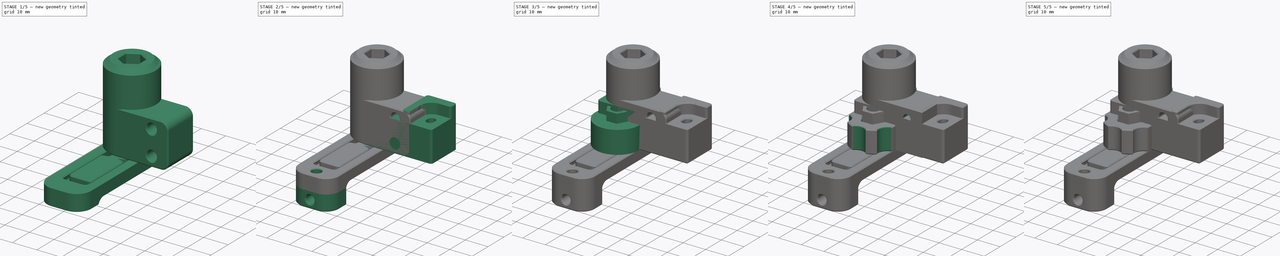
[diagram: build sequence overview — one tinted view per stage of 5, left to right]
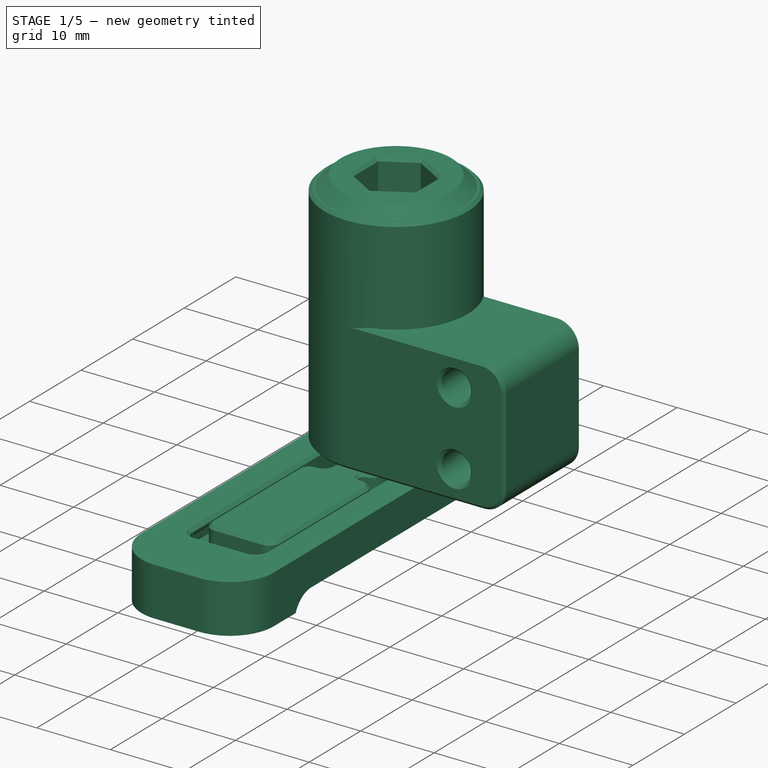
[diagram: stage 1 of 5 — iso view after this stage's code; geometry added in this stage tinted green]
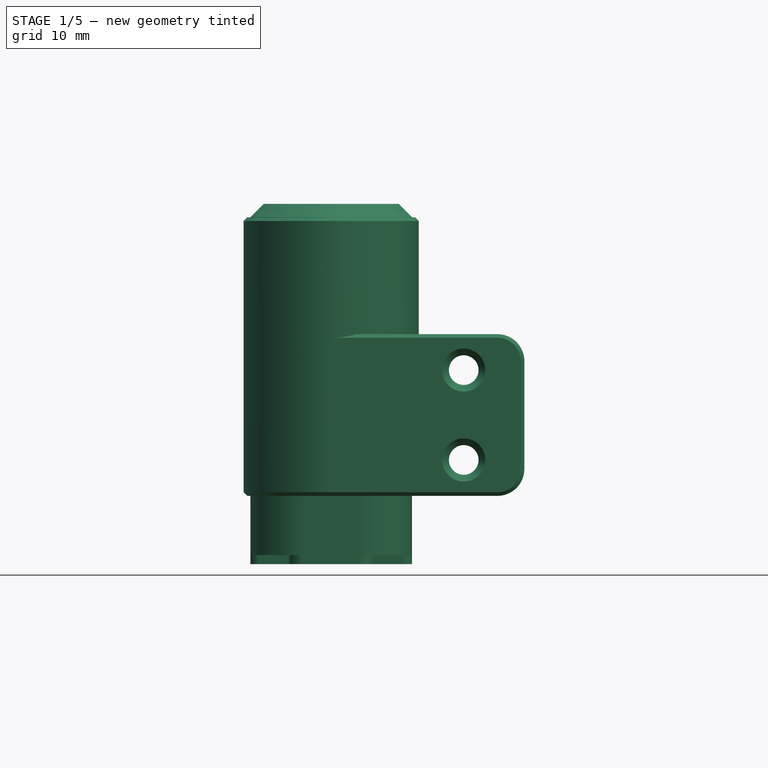
[diagram: stage 1 of 5 — front view after this stage's code; geometry added in this stage tinted green]
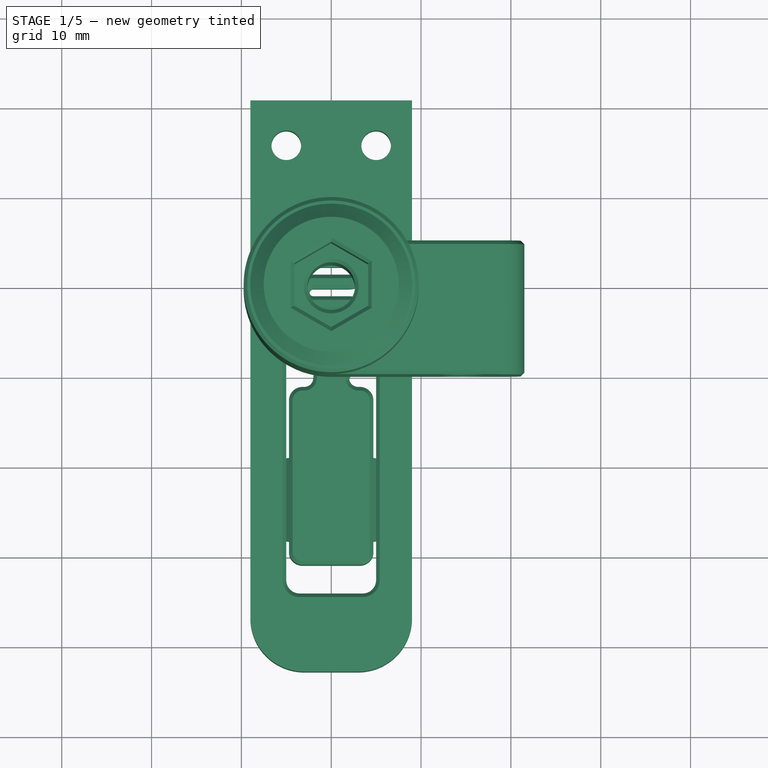
[diagram: stage 1 of 5 — top view after this stage's code; geometry added in this stage tinted green]
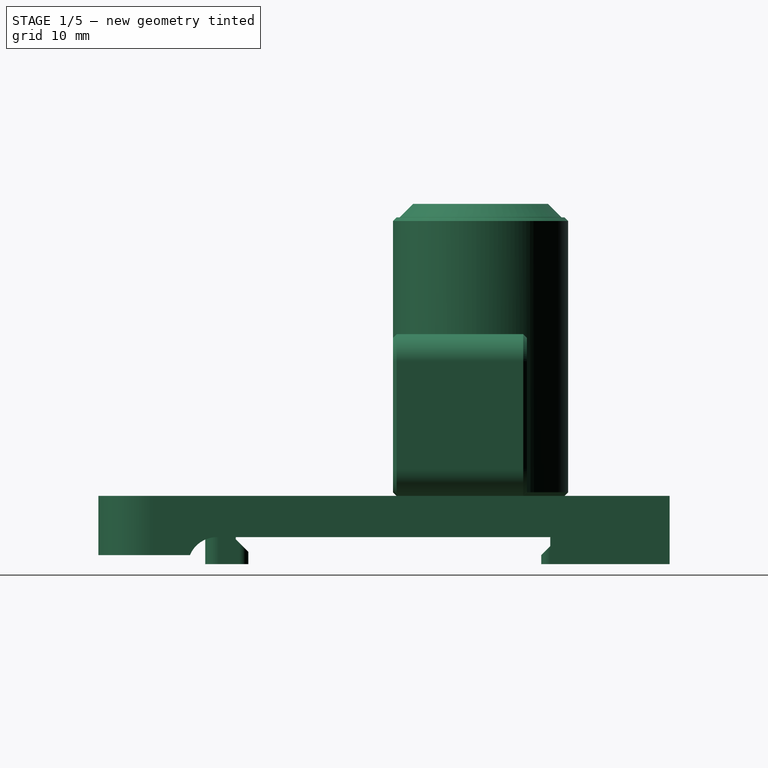
[diagram: stage 1 of 5 — right view after this stage's code; geometry added in this stage tinted green]
FCSTD DOCUMENT  (FreeCAD 0.19R24291 (Git))
Label: long-lcd-navi-mounter
License: All rights reserved
LicenseURL: http://en.wikipedia.org/wiki/All_rights_reserved
objects: Sketcher::SketchObject×28, PartDesign::Pocket×17, PartDesign::Pad×13, PartDesign::Chamfer×11, PartDesign::Fillet×8, PartDesign::Body×8, Part::Feature×2, PartDesign::FeatureBase×2, PartDesign::PolarPattern×1
note: 139 computed .brp shape members not serialized (recipe doc carries the construction recipe); baked Part::Feature solids carry a one-line shape summary decoded from their .brp

FEATURE [PartDesign::Body] Body004004003005  label="din-mounter-top"
  Group = -> [Sketch041,Pad002007,Sketch042,Pocket024,Sketch043,Pocket025,Sketch044,Pocket026,Fillet005010,Fillet005011,Chamfer007008]
  Origin = -> Origin009
  Placement = pos=(1.8e-14,-23,15) rot=(1,0,0;3.14159rad)
  Tip = -> Chamfer007008
FEATURE [Part::Feature] Fillet005012
FEATURE [PartDesign::FeatureBase] BaseFeature001
  BaseFeature = -> Fillet005012
FEATURE [Sketcher::SketchObject] Sketch045
  FullyConstrained = true
  MapMode = 5
  Placement = pos=(0,0,0) rot=(1,0,0;3.14159rad)
  Support = -> [BaseFeature001]
  sketch-geometry (2):
    g0: Circle CenterX=0 CenterY=-9.75 CenterZ=0 NormalX=0 NormalY=0 NormalZ=1 AngleXU=0 Radius=9.75
    g1: Circle CenterX=0 CenterY=-9.75 CenterZ=0 NormalX=0 NormalY=0 NormalZ=1 AngleXU=0 Radius=2.65
  constraints (5):
    c: PointOnObject(g0,g-2)
    c: Radius(g0) = 9.75
    c: DistanceY(g0,g-1) = 9.75
    c: Coincident(g1,g0)
    c: Radius(g1) = 2.65
FEATURE [PartDesign::Pad] Pad002008
  BaseFeature = -> BaseFeature001
  Direction = (1,1,1)
  Length = 31
  Length2 = 100
  Profile = -> Sketch045
  Reversed = true
  Type = 0
FEATURE [Sketcher::SketchObject] Sketch046
  FullyConstrained = false
  MapMode = 5
  Placement = pos=(0,0,31) rot=(0,0,1;0rad)
  Support = -> [Pad002008]
  sketch-geometry (2):
    g0: Circle CenterX=0 CenterY=9.75261 CenterZ=0 NormalX=0 NormalY=0 NormalZ=1 AngleXU=0 Radius=9
    g1: Circle CenterX=0 CenterY=9.75261 CenterZ=0 NormalX=0 NormalY=0 NormalZ=1 AngleXU=0 Radius=2.65
  constraints (4):
    c: PointOnObject(g0,g-2)
    c: Coincident(g1,g0)
    c: Radius(g1) = 2.65
    c: Radius(g0) = 9
FEATURE [PartDesign::Pad] Pad002009
  BaseFeature = -> Pad002008
  Direction = (1,1,1)
  Length = 1.5
  Length2 = 100
  Profile = -> Sketch046
  Type = 0
FEATURE [PartDesign::Chamfer] Chamfer007009
  Angle = 45
  Base = -> Pad002009 [Edge40]
  BaseFeature = -> Pad002009
  ChamferType = 0
  FlipDirection = false
  Size = 1.49
  Size2 = 1
  SupportTransform = false
FEATURE [Sketcher::SketchObject] Sketch047
  FullyConstrained = true
  MapMode = 5
  Placement = pos=(0,0,32.5) rot=(0,0,1;0rad)
  Support = -> [Chamfer007009]
  sketch-geometry (7):
    g0: LineSegment StartX=0 StartY=14.5 StartZ=0 EndX=-4.11362 EndY=12.125 EndZ=0
    g1: LineSegment StartX=-4.11362 StartY=12.125 StartZ=0 EndX=-4.11362 EndY=7.375 EndZ=0
    g2: LineSegment StartX=-4.11362 StartY=7.375 StartZ=0 EndX=-1.33e-14 EndY=5 EndZ=0
    g3: LineSegment StartX=-1.33e-14 StartY=5 StartZ=0 EndX=4.11362 EndY=7.375 EndZ=0
    g4: LineSegment StartX=4.11362 StartY=7.375 StartZ=0 EndX=4.11362 EndY=12.125 EndZ=0
    g5: LineSegment StartX=4.11362 StartY=12.125 StartZ=0 EndX=0 EndY=14.5 EndZ=0
    g6: Circle CenterX=0 CenterY=9.75 CenterZ=0 NormalX=0 NormalY=0 NormalZ=1 AngleXU=0 Radius=4.75
  constraints (17):
    c: Coincident(g0,g1)
    c: Coincident(g1,g2)
    c: Coincident(g2,g3)
    c: Coincident(g3,g4)
    c: Coincident(g4,g5)
    c: Coincident(g5,g0)
    c: Equal(g0, g1-g5) x5
    c: PointOnObject(g0,g6)
    c: PointOnObject(g1,g6)
    c: PointOnObject(g2,g6)
    c: PointOnObject(g3,g6)
    c: PointOnObject(g4,g6)
    c: PointOnObject(g5,g6)
    c: PointOnObject(g6,g-2)
    c: PointOnObject(g5,g-2)
    c: Radius(g6) = 4.75
    c: DistanceY(g-1,g6) = 9.75
FEATURE [PartDesign::Pocket] Pocket027
  BaseFeature = -> Chamfer007009
  Length = 11
  Length2 = 100
  Profile = -> Sketch047
  Refine = true
  Type = 0
FEATURE [PartDesign::FeatureBase] BaseFeature
  BaseFeature = -> Defeatured
FEATURE [Sketcher::SketchObject] Sketch052
  ExternalGeometry = -> [BaseFeature]
  FullyConstrained = true
  MapMode = 5
  Placement = pos=(-7.66e-14,2.1e-14,-7.59685) rot=(1,0,0;3.14159rad)
  Support = -> [BaseFeature]
  sketch-geometry (4):
    g0: LineSegment StartX=-9.00279 StartY=-20 StartZ=0 EndX=8.99721 EndY=-20 EndZ=0
    g1: LineSegment StartX=8.99721 StartY=-20 StartZ=0 EndX=8.99721 EndY=-30.797 EndZ=0
    g2: LineSegment StartX=8.99721 StartY=-30.797 StartZ=0 EndX=-9.00279 EndY=-30.797 EndZ=0
    g3: LineSegment StartX=-9.00279 StartY=-30.797 StartZ=0 EndX=-9.00279 EndY=-20 EndZ=0
  constraints (12):
    c: Coincident(g0,g1)
    c: Coincident(g1,g2)
    c: Coincident(g2,g3)
    c: Coincident(g3,g0)
    c: Horizontal(g0)
    c: Horizontal(g2)
    c: Vertical(g1)
    c: Vertical(g3)
    c: PointOnObject(g0,g-3)
    c: Vertical(g0,g-4)
    c: DistanceY(g2,g-5) = 0
    c: DistanceY(g0,g-1) = 20
FEATURE [PartDesign::Pad] Pad002012
  BaseFeature = -> BaseFeature
  Direction = (1,1,1)
  Length = 10
  Length2 = 100
  Profile = -> Sketch052
  Refine = true
  Type = 3
  UpToFace = -> BaseFeature [Face3]
FEATURE [PartDesign::Body] Body004004003007  label="top-connector"
  Group = -> [Sketch051,Pad002011,Fillet005014,Sketch056,Pad002015,Fillet005015,Fillet005016,Chamfer007016]
  Origin = -> Origin011
  Tip = -> Chamfer007016
FEATURE [Sketcher::SketchObject] Sketch057
  ExternalGeometry = -> [Pad002012]
  FullyConstrained = true
  MapMode = 5
  Placement = pos=(-7.67e-14,2.29e-14,-7.59685) rot=(1,0,0;3.14159rad)
  Support = -> [Pad002012]
  sketch-geometry (2):
    g0: Circle CenterX=-5.00279 CenterY=-25.797 CenterZ=0 NormalX=0 NormalY=0 NormalZ=1 AngleXU=0 Radius=1.65
    g1: Circle CenterX=4.99721 CenterY=-25.797 CenterZ=0 NormalX=0 NormalY=0 NormalZ=1 AngleXU=0 Radius=1.65
  constraints (6):
    c: Horizontal(g0,g1)
    c: Equal(g1,g0)
    c: DistanceX(g-3,g0) = 4
    c: DistanceX(g1,g-3) = 4
    c: DistanceY(g-3,g0) = 5
    c: Radius(g0) = 1.65
FEATURE [PartDesign::Pocket] Pocket029
  BaseFeature = -> Pad002012
  Length = 5
  Length2 = 100
  Profile = -> Sketch057
  Type = 1
FEATURE [PartDesign::Body] Body001  label="din-mounter"
  BaseFeature = -> Defeatured
  Group = -> [BaseFeature,Sketch052,Pad002012,Sketch057,Pocket029,Pad002016,Pad002017,Sketch058,Pocket030,Sketch059,Pocket031,Fillet005017,Chamfer007017]
  Origin = -> Origin001
  Tip = -> Chamfer007017
FEATURE [PartDesign::Chamfer] Chamfer007018
  Angle = 45
  Base = -> Pocket027 [Edge5,Edge19,Edge8,Edge15,Edge16,Edge17,Edge20,Edge31,Edge9,Edge10,Edge12,Edge6,Edge2,Edge13,Edge14,Edge32,Edge44,Edge45,Edge40,Edge41,Edge42,Edge43,Edge58,Edge34]
  BaseFeature = -> Pocket027
  ChamferType = 0
  FlipDirection = false
  Size = 0.4
  Size2 = 1
  SupportTransform = false
FEATURE [PartDesign::Chamfer] Chamfer007019
  Angle = 45
  Base = -> Chamfer007018 [Edge66,Edge68]
  BaseFeature = -> Chamfer007018
  ChamferType = 0
  FlipDirection = false
  Size = 0.34
  Size2 = 1
  SupportTransform = false
FEATURE [PartDesign::Body] Body004004003006  label="join-r2"
  BaseFeature = -> Fillet005012
  Group = -> [BaseFeature001,Sketch045,Pad002008,Sketch046,Pad002009,Chamfer007009,Sketch047,Pocket027,Chamfer007018,Chamfer007019]
  Origin = -> Origin010
  Tip = -> Chamfer007019
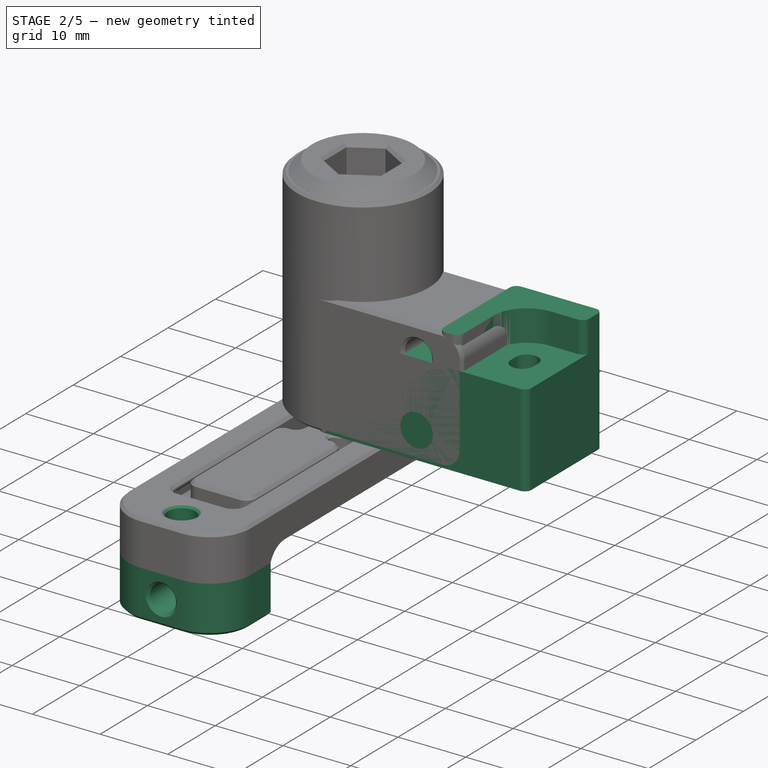
[diagram: stage 2 of 5 — iso view after this stage's code; geometry added in this stage tinted green]
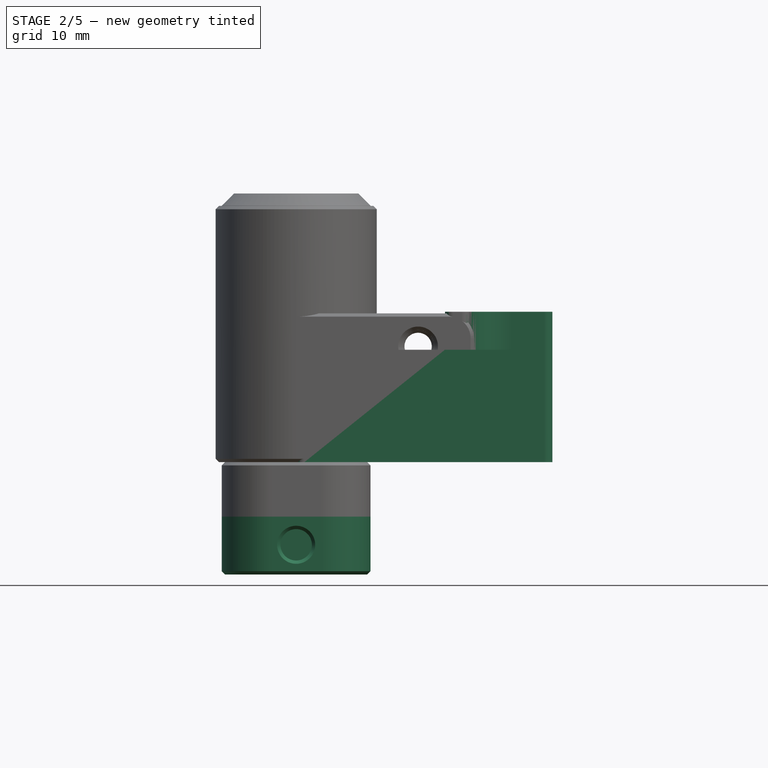
[diagram: stage 2 of 5 — front view after this stage's code; geometry added in this stage tinted green]
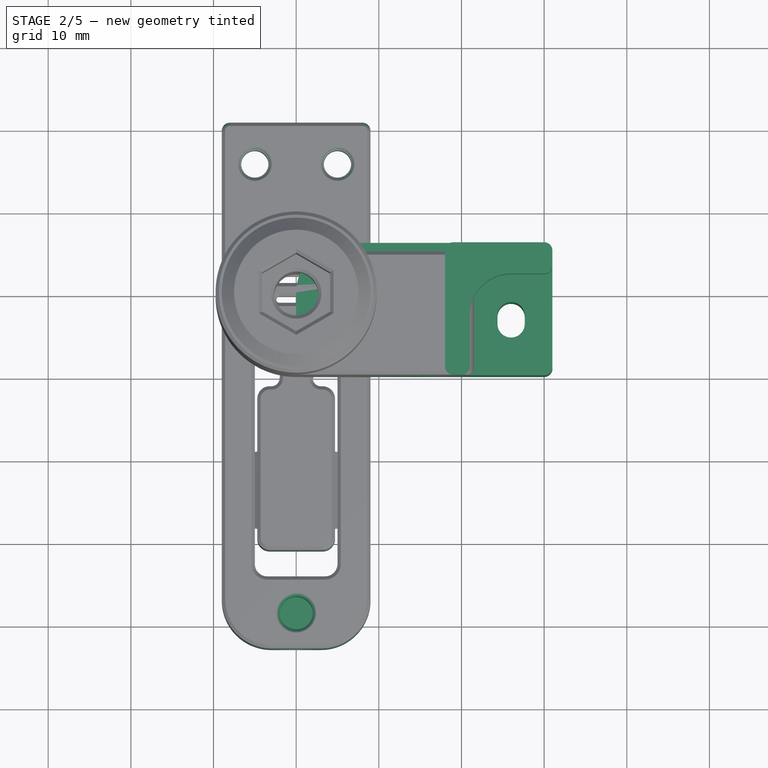
[diagram: stage 2 of 5 — top view after this stage's code; geometry added in this stage tinted green]
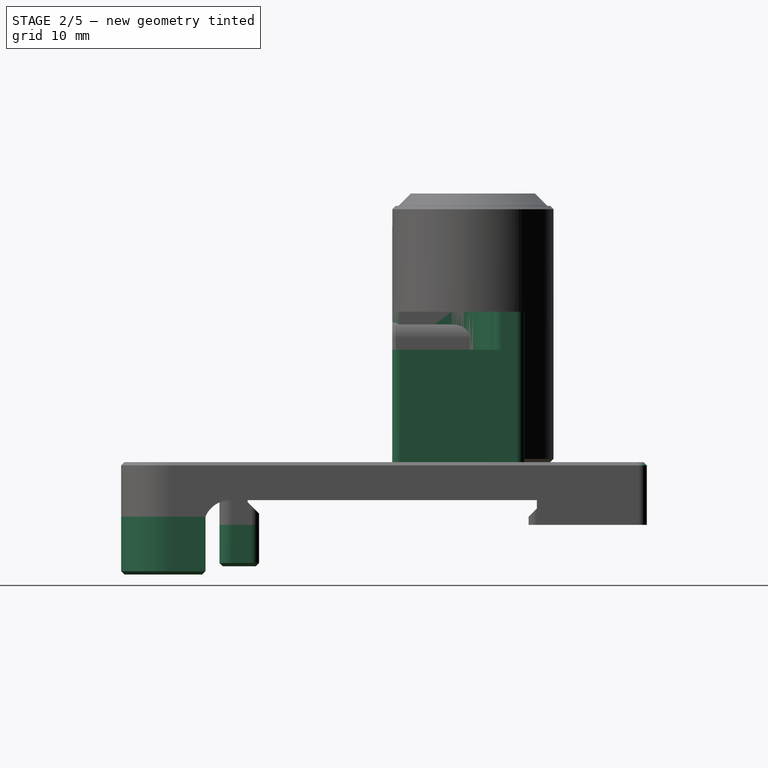
[diagram: stage 2 of 5 — right view after this stage's code; geometry added in this stage tinted green]
FEATURE [Sketcher::SketchObject] Sketch051
  FullyConstrained = true
  MapMode = 5
  Support = -> [XY_Plane011]
  sketch-geometry (9):
    g0: LineSegment StartX=0 StartY=0 StartZ=0 EndX=31 EndY=0 EndZ=0
    g1: LineSegment StartX=31 StartY=0 StartZ=0 EndX=31 EndY=16 EndZ=0
    g2: LineSegment StartX=31 StartY=16 StartZ=0 EndX=0 EndY=16 EndZ=0
    g3: LineSegment StartX=0 StartY=16 StartZ=0 EndX=0 EndY=0 EndZ=0
    g4: Circle CenterX=9 CenterY=11.7 CenterZ=0 NormalX=0 NormalY=0 NormalZ=1 AngleXU=0 Radius=1.65
    g5: ArcOfCircle CenterX=26 CenterY=6.2 CenterZ=0 NormalX=0 NormalY=0 NormalZ=1 AngleXU=0 Radius=1.65 StartAngle=3.14159 EndAngle=6.28319
    g6: ArcOfCircle CenterX=26 CenterY=7.2 CenterZ=0 NormalX=0 NormalY=0 NormalZ=1 AngleXU=0 Radius=1.65 StartAngle=0 EndAngle=3.14159
    g7: LineSegment StartX=27.65 StartY=6.2 StartZ=0 EndX=27.65 EndY=7.2 EndZ=0
    g8: LineSegment StartX=24.35 StartY=6.2 StartZ=0 EndX=24.35 EndY=7.2 EndZ=0
  constraints (24):
    c: Coincident(g0,g1)
    c: Coincident(g1,g2)
    c: Coincident(g2,g3)
    c: Coincident(g3,g0)
    c: Horizontal(g0)
    c: Horizontal(g2)
    c: Vertical(g1)
    c: Vertical(g3)
    c: Coincident(g0,g-1)
    c: DistanceX(g2,g2) = 31
    c: DistanceY(g1,g1) = 16
    c: DistanceY(g4,g2) = 4.3
    c: DistanceX(g2,g4) = 9
    c: Radius(g4) = 1.65
    c: Tangent(g5,g8) = 1.5708
    c: Tangent(g5,g7) = -1.5708
    c: Tangent(g7,g6) = -1.5708
    c: Tangent(g8,g6) = 1.5708
    c: Vertical(g7)
    c: Equal(g5,g6)
    c: DistanceX(g6,g1) = 5
    c: DistanceY(g6,g4) = 4.5
    c: DistanceY(g5,g6) = 1
    c: Radius(g6) = 1.65
FEATURE [PartDesign::Pad] Pad002011
  Direction = (1,1,1)
  Length = 13.6
  Length2 = 100
  Profile = -> Sketch051
  Type = 0
FEATURE [PartDesign::Fillet] Fillet005014
  Base = -> Pad002011 [Edge8]
  BaseFeature = -> Pad002011
  Radius = 6
  SupportTransform = false
FEATURE [Sketcher::SketchObject] Sketch056
  ExternalGeometry = -> [Fillet005014]
  FullyConstrained = true
  MapMode = 5
  Placement = pos=(0,0,13.6) rot=(0,0,1;0rad)
  Support = -> [Fillet005014]
  sketch-geometry (6):
    g0: LineSegment StartX=18 StartY=0 StartZ=0 EndX=18 EndY=16 EndZ=0
    g1: LineSegment StartX=18 StartY=16 StartZ=0 EndX=31 EndY=16 EndZ=0
    g2: LineSegment StartX=31 StartY=16 StartZ=0 EndX=31 EndY=12.2 EndZ=0
    g3: LineSegment StartX=31 StartY=12.2 StartZ=0 EndX=21 EndY=12.2 EndZ=0
    g4: LineSegment StartX=21 StartY=12.2 StartZ=0 EndX=21 EndY=0 EndZ=0
    g5: LineSegment StartX=21 StartY=0 StartZ=0 EndX=18 EndY=0 EndZ=0
  constraints (17):
    c: PointOnObject(g0,g-1)
    c: PointOnObject(g0,g-3)
    c: Vertical(g0)
    c: Coincident(g0,g1)
    c: Coincident(g1,g-4)
    c: Coincident(g1,g2)
    c: PointOnObject(g2,g-4)
    c: Coincident(g2,g3)
    c: Horizontal(g3)
    c: Coincident(g3,g4)
    c: PointOnObject(g4,g-1)
    c: Vertical(g4)
    c: Coincident(g4,g5)
    c: Coincident(g5,g0)
    c: DistanceX(g-5,g0) = 9
    c: DistanceX(g3,g-6) = 5
    c: DistanceY(g-6,g3) = 5
FEATURE [PartDesign::Pad] Pad002015
  BaseFeature = -> Fillet005014
  Direction = (1,1,1)
  Length = 4.6
  Length2 = 100
  Profile = -> Sketch056
  Refine = true
  Type = 0
FEATURE [PartDesign::Fillet] Fillet005015
  Base = -> Pad002015 [Edge41]
  BaseFeature = -> Pad002015
  Radius = 5
  SupportTransform = false
FEATURE [PartDesign::Fillet] Fillet005016
  Base = -> Fillet005015 [Edge15,Edge19,Edge11,Edge17,Edge24,Edge21,Edge42]
  BaseFeature = -> Fillet005015
  Radius = 1
  SupportTransform = false
FEATURE [PartDesign::Pad] Pad002016
  BaseFeature = -> Pocket029
  Direction = (1,1,1)
  Length = 7
  Length2 = 100
  Profile = -> Pocket029 [Face13]
  Type = 0
FEATURE [PartDesign::Pad] Pad002017
  BaseFeature = -> Pad002016
  Direction = (1,1,1)
  Length = 5
  Length2 = 100
  Profile = -> Pad002016 [Face139]
  Type = 0
FEATURE [Sketcher::SketchObject] Sketch058
  FullyConstrained = true
  MapMode = 5
  Placement = pos=(-6.233e-13,-32.803,-3.38e-14) rot=(1,0,0;1.5708rad)
  Support = -> [Pad002017]
  sketch-geometry (1):
    g0: Circle CenterX=0 CenterY=-10 CenterZ=0 NormalX=0 NormalY=0 NormalZ=1 AngleXU=0 Radius=1.9
  constraints (3):
    c: PointOnObject(g0,g-2)
    c: Radius(g0) = 1.9
    c: DistanceY(g0,g-1) = 10
FEATURE [PartDesign::Pocket] Pocket030
  BaseFeature = -> Pad002017
  Length = 0
  Length2 = 100
  Profile = -> Sketch058
  Type = 3
  UpToFace = -> Pad002017 [Face129]
FEATURE [Sketcher::SketchObject] Sketch059
  FullyConstrained = true
  MapMode = 5
  Placement = pos=(0,0,0.0031494) rot=(0,0,1;0rad)
  Support = -> [Pocket030]
  sketch-geometry (1):
    g0: Circle CenterX=0 CenterY=-28.5 CenterZ=0 NormalX=0 NormalY=0 NormalZ=1 AngleXU=0 Radius=2
  constraints (3):
    c: PointOnObject(g0,g-2)
    c: Radius(g0) = 2
    c: DistanceY(g0,g-1) = 28.5
FEATURE [PartDesign::Pocket] Pocket031
  BaseFeature = -> Pocket030
  Length = 7
  Length2 = 100
  Profile = -> Sketch059
  Type = 0
FEATURE [PartDesign::Fillet] Fillet005017
  Base = -> Pocket031 [Edge24,Edge18]
  BaseFeature = -> Pocket031
  Radius = 1
  SupportTransform = false
FEATURE [PartDesign::Chamfer] Chamfer007017
  Angle = 45
  Base = -> Fillet005017 [Face77,Face163,Edge10,Edge9,Edge291,Edge94,Edge38,Edge40,Edge28,Edge23,Edge20,Edge11,Edge31,Edge41,Edge42,Edge43]
  BaseFeature = -> Fillet005017
  ChamferType = 0
  FlipDirection = false
  Size = 0.4
  Size2 = 1
  SupportTransform = false
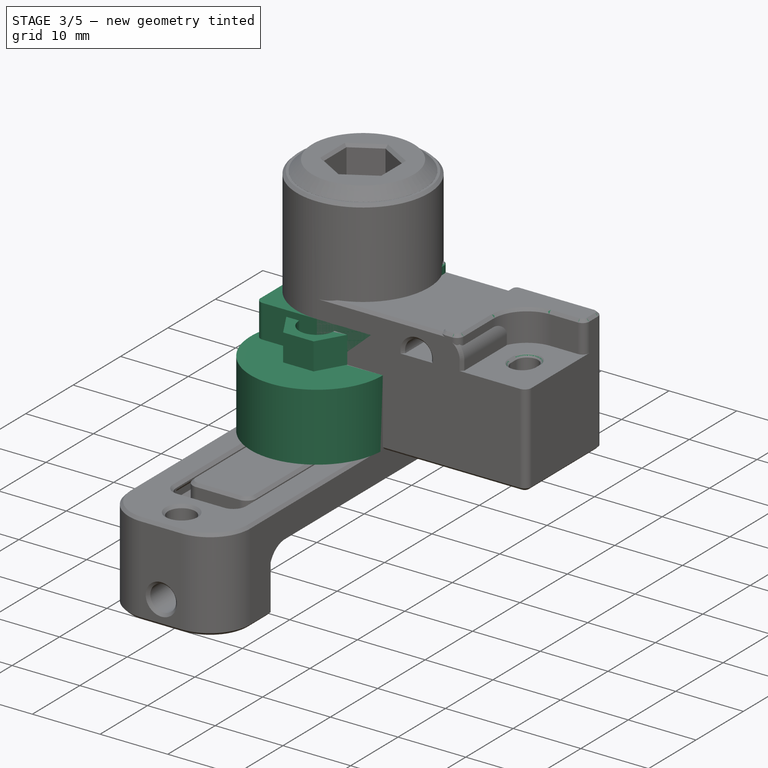
[diagram: stage 3 of 5 — iso view after this stage's code; geometry added in this stage tinted green]
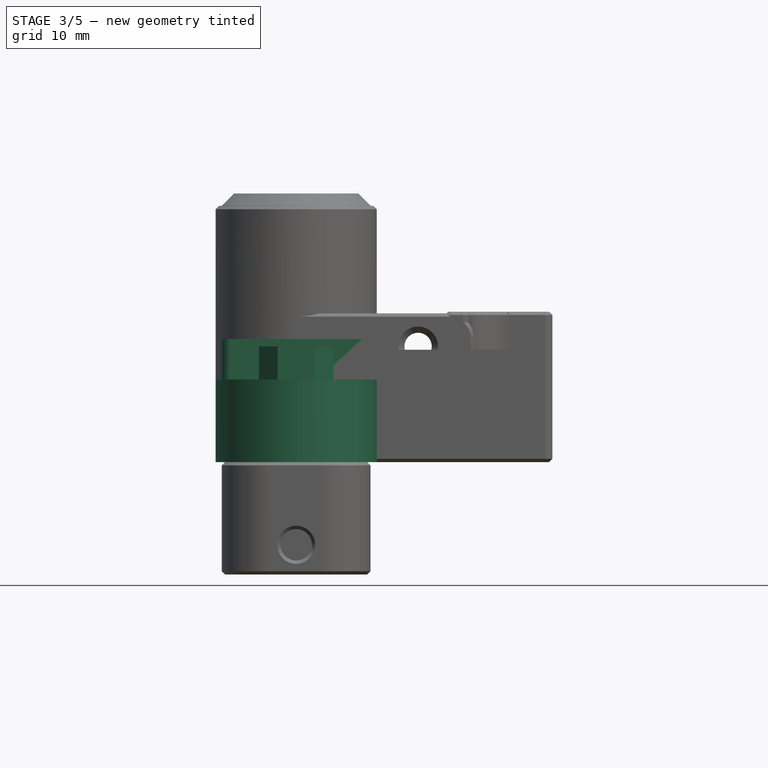
[diagram: stage 3 of 5 — front view after this stage's code; geometry added in this stage tinted green]
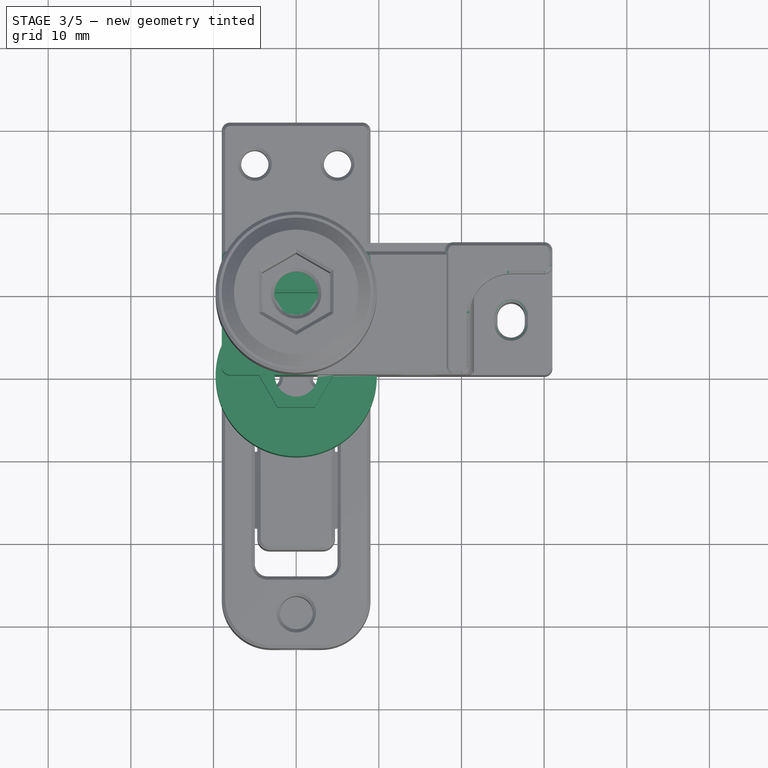
[diagram: stage 3 of 5 — top view after this stage's code; geometry added in this stage tinted green]
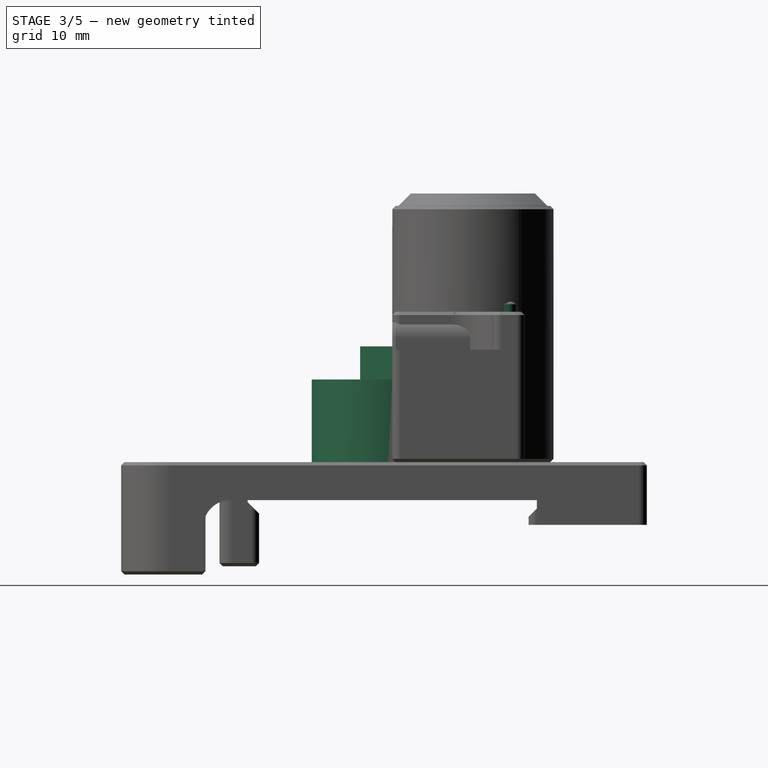
[diagram: stage 3 of 5 — right view after this stage's code; geometry added in this stage tinted green]
FEATURE [PartDesign::Body] Body  label="join"
  Group = -> [Sketch,Pad,Sketch001,Pad002002,Chamfer,Sketch002,Pocket,Sketch032,Pocket017,Sketch033,Pocket018,Sketch034,Pocket019,Sketch035,Pocket020,Fillet,Chamfer007004,Chamfer007005]
  Origin = -> Origin
  Placement = pos=(-9,39,15) rot=(0.57735,-0.57735,0.57735;4.18879rad)
  Tip = -> Chamfer007005
FEATURE [Sketcher::SketchObject] Sketch037
  FullyConstrained = true
  MapMode = 5
  Support = -> [XY_Plane007]
  sketch-geometry (3):
    g0: Circle CenterX=0 CenterY=0 CenterZ=0 NormalX=0 NormalY=0 NormalZ=1 AngleXU=0 Radius=2.65
    g1: Circle CenterX=0 CenterY=0 CenterZ=0 NormalX=0 NormalY=0 NormalZ=1 AngleXU=0 Radius=4.75
    g2: Circle CenterX=0 CenterY=0 CenterZ=0 NormalX=0 NormalY=0 NormalZ=1 AngleXU=0 Radius=9.75
  constraints (6):
    c: Coincident(g0,g-1)
    c: Coincident(g1,g0)
    c: Radius(g1) = 4.75
    c: Radius(g0) = 2.65
    c: Coincident(g2,g0)
    c: Radius(g2) = 9.75
FEATURE [PartDesign::Pad] Pad002005
  Direction = (1,1,1)
  Length = 10
  Length2 = 100
  Profile = -> Sketch037
  Type = 0
FEATURE [PartDesign::Body] Body004004003003  label="knob"
  Group = -> [Sketch037,Pad002005,Sketch038,Pocket022,PolarPattern,Sketch039,Pocket023,Chamfer007007]
  Origin = -> Origin007
  Tip = -> Chamfer007007
FEATURE [Sketcher::SketchObject] Sketch040
  FullyConstrained = true
  MapMode = 5
  Support = -> [XY_Plane008]
  sketch-geometry (8):
    g0: LineSegment StartX=-4.5 StartY=0 StartZ=0 EndX=-2.25 EndY=-3.89711 EndZ=0
    g1: LineSegment StartX=-2.25 StartY=-3.89711 StartZ=0 EndX=2.25 EndY=-3.89711 EndZ=0
    g2: LineSegment StartX=2.25 StartY=-3.89711 StartZ=0 EndX=4.5 EndY=1.09179e-11 EndZ=0
    g3: LineSegment StartX=4.5 StartY=1.09178e-11 StartZ=0 EndX=2.25 EndY=3.89711 EndZ=0
    g4: LineSegment StartX=2.25 StartY=3.89711 StartZ=0 EndX=-2.25 EndY=3.89711 EndZ=0
    g5: LineSegment StartX=-2.25 StartY=3.89711 StartZ=0 EndX=-4.5 EndY=0 EndZ=0
    g6: Circle CenterX=0 CenterY=0 CenterZ=0 NormalX=0 NormalY=0 NormalZ=1 AngleXU=0 Radius=4.5
    g7: Circle CenterX=0 CenterY=0 CenterZ=0 NormalX=0 NormalY=0 NormalZ=1 AngleXU=0 Radius=2.6
  constraints (18):
    c: Coincident(g0,g1)
    c: Coincident(g1,g2)
    c: Coincident(g2,g3)
    c: Coincident(g3,g4)
    c: Coincident(g4,g5)
    c: Coincident(g5,g0)
    c: Equal(g0, g1-g5) x5
    c: PointOnObject(g0,g6)
    c: PointOnObject(g1,g6)
    c: PointOnObject(g2,g6)
    c: PointOnObject(g3,g6)
    c: PointOnObject(g4,g6)
    c: PointOnObject(g5,g6)
    c: Coincident(g6,g-1)
    c: PointOnObject(g5,g-1)
    c: Coincident(g7,g-1)
    c: Radius(g7) = 2.6
    c: Radius(g6) = 4.5
FEATURE [PartDesign::Pad] Pad002006
  Direction = (1,1,1)
  Length = 14
  Length2 = 100
  Profile = -> Sketch040
  Type = 0
FEATURE [PartDesign::Body] Body004004003004  label="long-nut"
  Group = -> [Sketch040,Pad002006]
  Origin = -> Origin008
  Tip = -> Pad002006
FEATURE [Sketcher::SketchObject] Sketch041
  FullyConstrained = true
  MapMode = 5
  Support = -> [XY_Plane009]
  sketch-geometry (4):
    g0: LineSegment StartX=9 StartY=0 StartZ=0 EndX=-9 EndY=0 EndZ=0
    g1: LineSegment StartX=-9 StartY=0 StartZ=0 EndX=-9 EndY=15 EndZ=0
    g2: LineSegment StartX=-9 StartY=15 StartZ=0 EndX=9 EndY=15 EndZ=0
    g3: LineSegment StartX=9 StartY=15 StartZ=0 EndX=9 EndY=0 EndZ=0
  constraints (12):
    c: Coincident(g0,g1)
    c: Coincident(g1,g2)
    c: Coincident(g2,g3)
    c: Coincident(g3,g0)
    c: Horizontal(g0)
    c: Horizontal(g2)
    c: Vertical(g1)
    c: Vertical(g3)
    c: PointOnObject(g0,g-1)
    c: DistanceX(g-1,g0) = 9
    c: DistanceX(g0,g-1) = 9
    c: DistanceY(g3,g3) = 15
FEATURE [PartDesign::Pad] Pad002007
  Direction = (1,1,1)
  Length = 19.5
  Length2 = 100
  Profile = -> Sketch041
  Type = 0
FEATURE [Sketcher::SketchObject] Sketch042
  FullyConstrained = true
  MapMode = 5
  Placement = pos=(0,0,19.5) rot=(0,0,1;0rad)
  Support = -> [Pad002007]
  sketch-geometry (6):
    g0: LineSegment StartX=-3 StartY=9.9 StartZ=0 EndX=3 EndY=9.9 EndZ=0
    g1: ArcOfCircle CenterX=3 CenterY=3.8 CenterZ=0 NormalX=0 NormalY=0 NormalZ=1 AngleXU=0 Radius=6.1 StartAngle=0 EndAngle=1.5708
    g2: ArcOfCircle CenterX=-3 CenterY=3.8 CenterZ=0 NormalX=0 NormalY=0 NormalZ=1 AngleXU=0 Radius=6.1 StartAngle=1.5708 EndAngle=3.14159
    g3: LineSegment StartX=-9.1 StartY=3.8 StartZ=0 EndX=-9.1 EndY=0 EndZ=0
    g4: LineSegment StartX=-9.1 StartY=0 StartZ=0 EndX=9.1 EndY=0 EndZ=0
    g5: LineSegment StartX=9.1 StartY=0 StartZ=0 EndX=9.1 EndY=3.8 EndZ=0
  constraints (19):
    c: Horizontal(g0)
    c: Coincident(g2,g0)
    c: Coincident(g0,g1)
    c: Vertical(g1,g0)
    c: Vertical(g2,g0)
    c: DistanceX(g0,g-1) = 3
    c: DistanceX(g-1,g0) = 3
    c: Radius(g2) = 6.1
    c: Radius(g1) = 6.1
    c: Horizontal(g2,g2)
    c: Horizontal(g1,g1)
    c: Tangent(g2,g3) = -1.5708
    c: Coincident(g3,g4)
    c: PointOnObject(g4,g-1)
    c: Horizontal(g4)
    c: Coincident(g4,g5)
    c: Coincident(g5,g1)
    c: Vertical(g5)
    c: DistanceY(g-1,g0) = 9.9
FEATURE [PartDesign::Pocket] Pocket024
  BaseFeature = -> Pad002007
  Length = 4.6
  Length2 = 100
  Profile = -> Sketch042
  Type = 0
FEATURE [Sketcher::SketchObject] Sketch043
  FullyConstrained = true
  MapMode = 5
  Placement = pos=(0,0,0) rot=(1,0,0;3.14159rad)
  Support = -> [Pocket024]
  sketch-geometry (1):
    g0: Circle CenterX=0 CenterY=-5.5 CenterZ=0 NormalX=0 NormalY=0 NormalZ=1 AngleXU=0 Radius=1.65
  constraints (3):
    c: PointOnObject(g0,g-2)
    c: DistanceY(g0,g-1) = 5.5
    c: Radius(g0) = 1.65
FEATURE [PartDesign::Pocket] Pocket025
  BaseFeature = -> Pocket024
  Length = 5
  Length2 = 100
  Profile = -> Sketch043
  Type = 1
FEATURE [Sketcher::SketchObject] Sketch044
  FullyConstrained = true
  MapMode = 5
  Placement = pos=(0,0,0) rot=(1,0,0;3.14159rad)
  Support = -> [Pocket025]
  sketch-geometry (1):
    g0: Circle CenterX=0 CenterY=-5.5 CenterZ=0 NormalX=0 NormalY=0 NormalZ=1 AngleXU=0 Radius=3.2
  constraints (3):
    c: PointOnObject(g0,g-2)
    c: DistanceY(g0,g-1) = 5.5
    c: Radius(g0) = 3.2
FEATURE [PartDesign::Pocket] Pocket026
  BaseFeature = -> Pocket025
  Length = 8
  Length2 = 100
  Profile = -> Sketch044
  Type = 0
FEATURE [PartDesign::Fillet] Fillet005010
  Base = -> Pocket026 [Edge11,Edge18]
  BaseFeature = -> Pocket026
  Radius = 1
  SupportTransform = false
FEATURE [PartDesign::Fillet] Fillet005011
  Base = -> Fillet005010 [Edge30,Edge17,Edge7,Edge3]
  BaseFeature = -> Fillet005010
  Radius = 1
  SupportTransform = false
FEATURE [PartDesign::Chamfer] Chamfer007008
  Angle = 45
  Base = -> Fillet005011 [Face5,Face2,Edge37,Edge49]
  BaseFeature = -> Fillet005011
  ChamferType = 0
  FlipDirection = false
  Size = 0.4
  Size2 = 1
  SupportTransform = false
FEATURE [PartDesign::Chamfer] Chamfer007016
  Angle = 45
  Base = -> Fillet005016 [Face15,Edge66,Face14,Edge11,Edge13,Edge14,Edge12]
  BaseFeature = -> Fillet005016
  ChamferType = 0
  FlipDirection = false
  Size = 0.4
  Size2 = 1
  SupportTransform = false
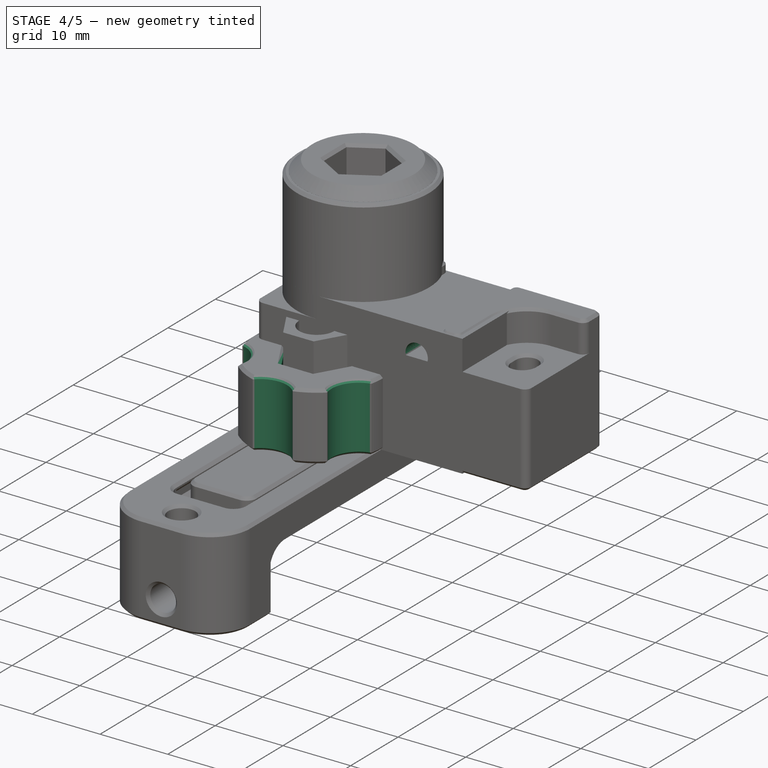
[diagram: stage 4 of 5 — iso view after this stage's code; geometry added in this stage tinted green]
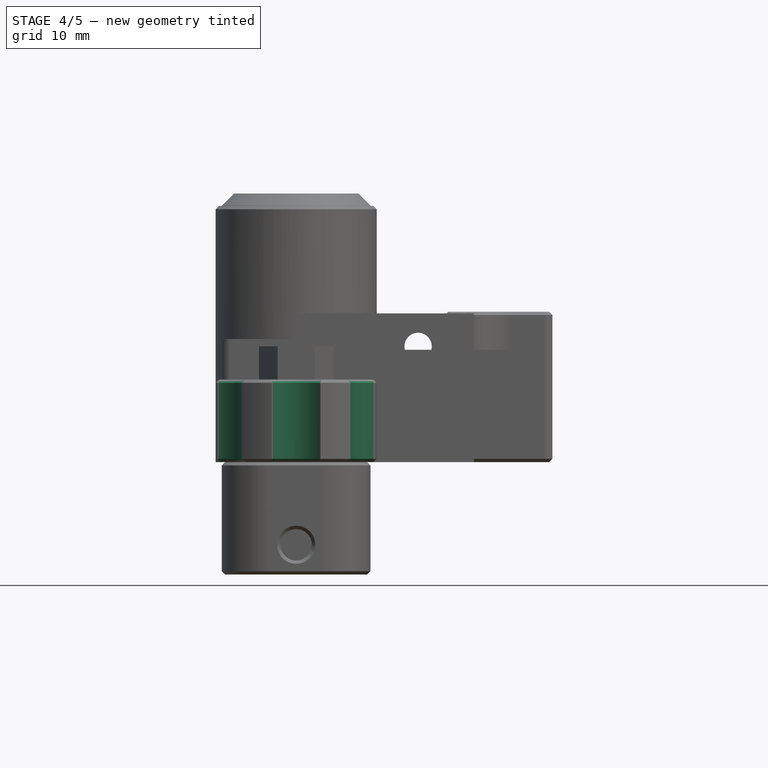
[diagram: stage 4 of 5 — front view after this stage's code; geometry added in this stage tinted green]
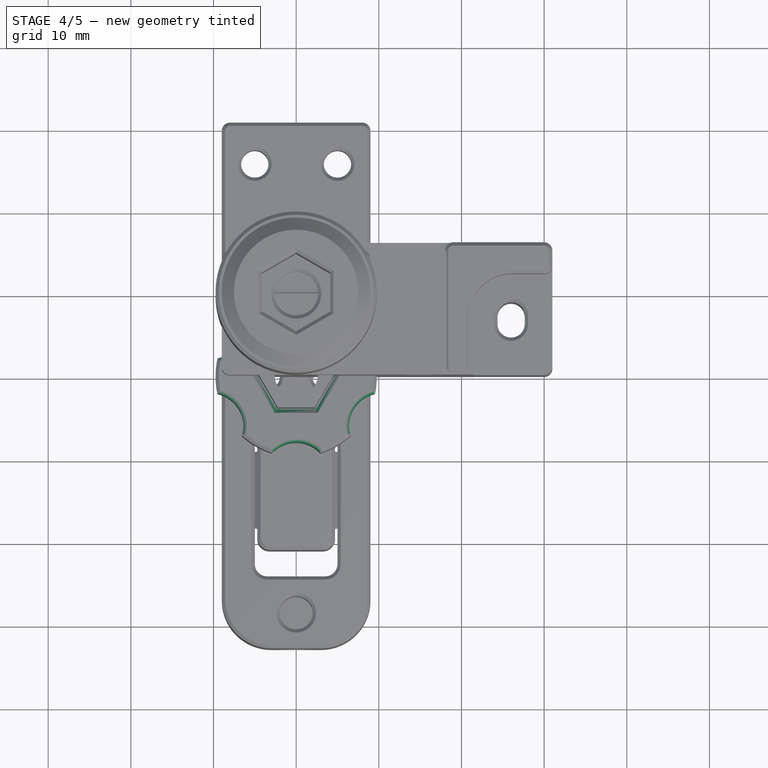
[diagram: stage 4 of 5 — top view after this stage's code; geometry added in this stage tinted green]
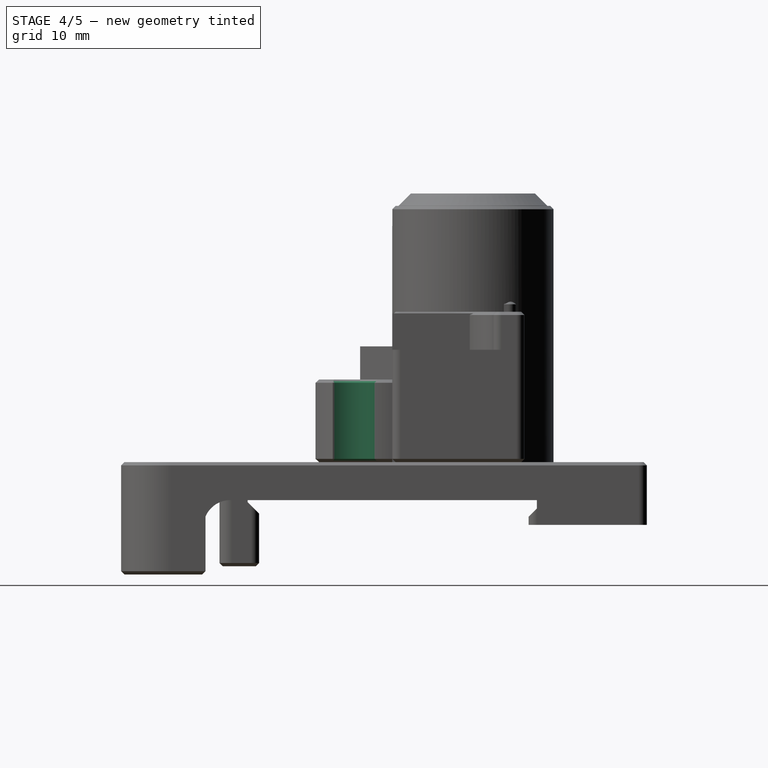
[diagram: stage 4 of 5 — right view after this stage's code; geometry added in this stage tinted green]
FEATURE [Sketcher::SketchObject] Sketch
  FullyConstrained = true
  MapMode = 5
  Support = -> [XY_Plane]
  sketch-geometry (4):
    g0: ArcOfCircle CenterX=0 CenterY=9.75 CenterZ=0 NormalX=0 NormalY=0 NormalZ=1 AngleXU=0 Radius=9.75 StartAngle=0.556485 EndAngle=4.71239
    g1: LineSegment StartX=21.5 StartY=0 StartZ=0 EndX=21.5 EndY=14.9 EndZ=0
    g2: LineSegment StartX=21.5 StartY=14.9 StartZ=0 EndX=8.27889 EndY=14.9 EndZ=0
    g3: LineSegment StartX=-1.8e-15 StartY=0 StartZ=0 EndX=21.5 EndY=0 EndZ=0
  constraints (12):
    c: PointOnObject(g0,g-2)
    c: PointOnObject(g1,g-1)
    c: Vertical(g1)
    c: Coincident(g1,g2)
    c: Horizontal(g2)
    c: Coincident(g0,g-1)
    c: Radius(g0) = 9.75
    c: Coincident(g3,g0)
    c: Coincident(g3,g1)
    c: DistanceY(g1,g1) = 14.9
    c: Coincident(g2,g0)
    c: DistanceX(g0,g1) = 21.5
FEATURE [PartDesign::Pad] Pad
  Direction = (1,1,1)
  Length = 18
  Length2 = 100
  Profile = -> Sketch
  Type = 0
FEATURE [Sketcher::SketchObject] Sketch001
  FullyConstrained = true
  MapMode = 5
  Placement = pos=(0,0,18) rot=(0,0,1;0rad)
  Support = -> [Pad]
  sketch-geometry (1):
    g0: Circle CenterX=0 CenterY=9.75 CenterZ=0 NormalX=0 NormalY=0 NormalZ=1 AngleXU=0 Radius=9
  constraints (3):
    c: PointOnObject(g0,g-2)
    c: Radius(g0) = 9
    c: DistanceY(g-1,g0) = 9.75
FEATURE [PartDesign::Pad] Pad002002
  BaseFeature = -> Pad
  Direction = (1,1,1)
  Length = 1.5
  Length2 = 100
  Profile = -> Sketch001
  Type = 0
FEATURE [PartDesign::Chamfer] Chamfer
  Angle = 45
  Base = -> Pad002002 [Edge15]
  BaseFeature = -> Pad002002
  ChamferType = 0
  FlipDirection = false
  Size = 1.49
  Size2 = 1
  SupportTransform = false
FEATURE [Sketcher::SketchObject] Sketch002
  FullyConstrained = true
  MapMode = 5
  Placement = pos=(0,0,19.5) rot=(0,0,1;0rad)
  Support = -> [Chamfer]
  sketch-geometry (1):
    g0: Circle CenterX=0 CenterY=9.75 CenterZ=0 NormalX=0 NormalY=0 NormalZ=1 AngleXU=0 Radius=4.75
  constraints (3):
    c: PointOnObject(g0,g-2)
    c: DistanceY(g-1,g0) = 9.75
    c: Radius(g0) = 4.75
FEATURE [PartDesign::Pocket] Pocket
  BaseFeature = -> Chamfer
  Length = 3
  Length2 = 100
  Profile = -> Sketch002
  Type = 0
FEATURE [PartDesign::Body] Body004004003002  label="nut-holder"
  Group = -> [Sketch028,Pad009,Sketch029,Pocket014,Sketch030,Pocket015,Sketch031,Pocket016,Fillet005009,Chamfer007003]
  Origin = -> Origin006
  Tip = -> Chamfer007003
FEATURE [Sketcher::SketchObject] Sketch032
  FullyConstrained = true
  MapMode = 5
  Placement = pos=(0,0,16.5) rot=(0,0,1;0rad)
  Support = -> [Pocket]
  sketch-geometry (7):
    g0: LineSegment StartX=0 StartY=14.5 StartZ=0 EndX=-4.11362 EndY=12.125 EndZ=0
    g1: LineSegment StartX=-4.11362 StartY=12.125 StartZ=0 EndX=-4.11362 EndY=7.375 EndZ=0
    g2: LineSegment StartX=-4.11362 StartY=7.375 StartZ=0 EndX=6.91367e-11 EndY=5 EndZ=0
    g3: LineSegment StartX=6.91367e-11 StartY=5 StartZ=0 EndX=4.11362 EndY=7.375 EndZ=0
    g4: LineSegment StartX=4.11362 StartY=7.375 StartZ=0 EndX=4.11362 EndY=12.125 EndZ=0
    g5: LineSegment StartX=4.11362 StartY=12.125 StartZ=0 EndX=0 EndY=14.5 EndZ=0
    g6: Circle CenterX=0 CenterY=9.75 CenterZ=0 NormalX=0 NormalY=0 NormalZ=1 AngleXU=0 Radius=4.75
  constraints (17):
    c: Coincident(g0,g1)
    c: Coincident(g1,g2)
    c: Coincident(g2,g3)
    c: Coincident(g3,g4)
    c: Coincident(g4,g5)
    c: Coincident(g5,g0)
    c: Equal(g0, g1-g5) x5
    c: PointOnObject(g0,g6)
    c: PointOnObject(g1,g6)
    c: PointOnObject(g2,g6)
    c: PointOnObject(g3,g6)
    c: PointOnObject(g4,g6)
    c: PointOnObject(g5,g6)
    c: PointOnObject(g6,g-2)
    c: PointOnObject(g5,g-2)
    c: DistanceY(g-1,g6) = 9.75
    c: Radius(g6) = 4.75
FEATURE [PartDesign::Pocket] Pocket017
  BaseFeature = -> Pocket
  Length = 8
  Length2 = 100
  Profile = -> Sketch032
  Type = 0
FEATURE [Sketcher::SketchObject] Sketch033
  FullyConstrained = true
  MapMode = 5
  Placement = pos=(0,0,8.5) rot=(0,0,1;0rad)
  Support = -> [Pocket017]
  sketch-geometry (1):
    g0: Circle CenterX=0 CenterY=9.75 CenterZ=0 NormalX=0 NormalY=0 NormalZ=1 AngleXU=0 Radius=2.65
  constraints (3):
    c: PointOnObject(g0,g-2)
    c: DistanceY(g-1,g0) = 9.75
    c: Radius(g0) = 2.65
FEATURE [PartDesign::Pocket] Pocket018
  BaseFeature = -> Pocket017
  Length = 5
  Length2 = 100
  Profile = -> Sketch033
  Type = 1
FEATURE [Sketcher::SketchObject] Sketch034
  FullyConstrained = true
  MapMode = 5
  Placement = pos=(0,0,0) rot=(1,0,0;1.5708rad)
  Support = -> [Pocket018]
  sketch-geometry (2):
    g0: Circle CenterX=14.75 CenterY=14 CenterZ=0 NormalX=0 NormalY=0 NormalZ=1 AngleXU=0 Radius=1.65
    g1: Circle CenterX=14.75 CenterY=4 CenterZ=0 NormalX=0 NormalY=0 NormalZ=1 AngleXU=0 Radius=1.65
  constraints (6):
    c: Vertical(g0,g1)
    c: DistanceX(g-1,g1) = 14.75
    c: Equal(g1,g0)
    c: DistanceY(g-1,g1) = 4
    c: DistanceY(g1,g0) = 10
    c: Radius(g0) = 1.65
FEATURE [PartDesign::Pocket] Pocket019
  BaseFeature = -> Pocket018
  Length = 5
  Length2 = 100
  Profile = -> Sketch034
  Type = 1
FEATURE [Sketcher::SketchObject] Sketch038
  FullyConstrained = true
  MapMode = 5
  Placement = pos=(0,0,10) rot=(0,0,1;0rad)
  Support = -> [Pad002005]
  sketch-geometry (1):
    g0: Circle CenterX=0 CenterY=12 CenterZ=0 NormalX=0 NormalY=0 NormalZ=1 AngleXU=0 Radius=4
  constraints (3):
    c: PointOnObject(g0,g-2)
    c: Radius(g0) = 4
    c: DistanceY(g-1,g0) = 12
FEATURE [PartDesign::Pocket] Pocket022
  BaseFeature = -> Pad002005
  Length = 5
  Length2 = 100
  Profile = -> Sketch038
  Type = 1
FEATURE [PartDesign::PolarPattern] PolarPattern
  Angle = 360
  Axis = -> Sketch038 [N_Axis]
  BaseFeature = -> Pocket022
  Occurrences = 6
  Originals = -> [Pocket022]
FEATURE [Sketcher::SketchObject] Sketch039
  FullyConstrained = true
  MapMode = 5
  Placement = pos=(0,0,10) rot=(0,0,1;0rad)
  Support = -> [PolarPattern]
  sketch-geometry (7):
    g0: LineSegment StartX=2.375 StartY=4.11362 StartZ=0 EndX=-2.375 EndY=4.11362 EndZ=0
    g1: LineSegment StartX=-2.375 StartY=4.11362 StartZ=0 EndX=-4.75 EndY=1.616e-13 EndZ=0
    g2: LineSegment StartX=-4.75 StartY=1.616e-13 StartZ=0 EndX=-2.375 EndY=-4.11362 EndZ=0
    g3: LineSegment StartX=-2.375 StartY=-4.11362 StartZ=0 EndX=2.375 EndY=-4.11362 EndZ=0
    g4: LineSegment StartX=2.375 StartY=-4.11362 StartZ=0 EndX=4.75 EndY=1.616e-13 EndZ=0
    g5: LineSegment StartX=4.75 StartY=1.616e-13 StartZ=0 EndX=2.375 EndY=4.11362 EndZ=0
    g6: Circle CenterX=0 CenterY=0 CenterZ=0 NormalX=0 NormalY=0 NormalZ=1 AngleXU=0 Radius=4.75
  constraints (16):
    c: Coincident(g0,g1)
    c: Coincident(g1,g2)
    c: Coincident(g2,g3)
    c: Coincident(g3,g4)
    c: Coincident(g4,g5)
    c: Coincident(g5,g0)
    c: Equal(g0, g1-g5) x5
    c: PointOnObject(g0,g6)
    c: PointOnObject(g1,g6)
    c: PointOnObject(g2,g6)
    c: PointOnObject(g3,g6)
    c: PointOnObject(g4,g6)
    c: PointOnObject(g5,g6)
    c: Coincident(g6,g-1)
    c: Horizontal(g0)
    c: Radius(g6) = 4.75
FEATURE [PartDesign::Pocket] Pocket023
  BaseFeature = -> PolarPattern
  Length = 7
  Length2 = 100
  Profile = -> Sketch039
  Type = 0
FEATURE [PartDesign::Chamfer] Chamfer007007
  Angle = 45
  Base = -> Pocket023 [Face4,Face2,Edge48]
  BaseFeature = -> Pocket023
  ChamferType = 0
  FlipDirection = false
  Size = 0.4
  Size2 = 1
  SupportTransform = false
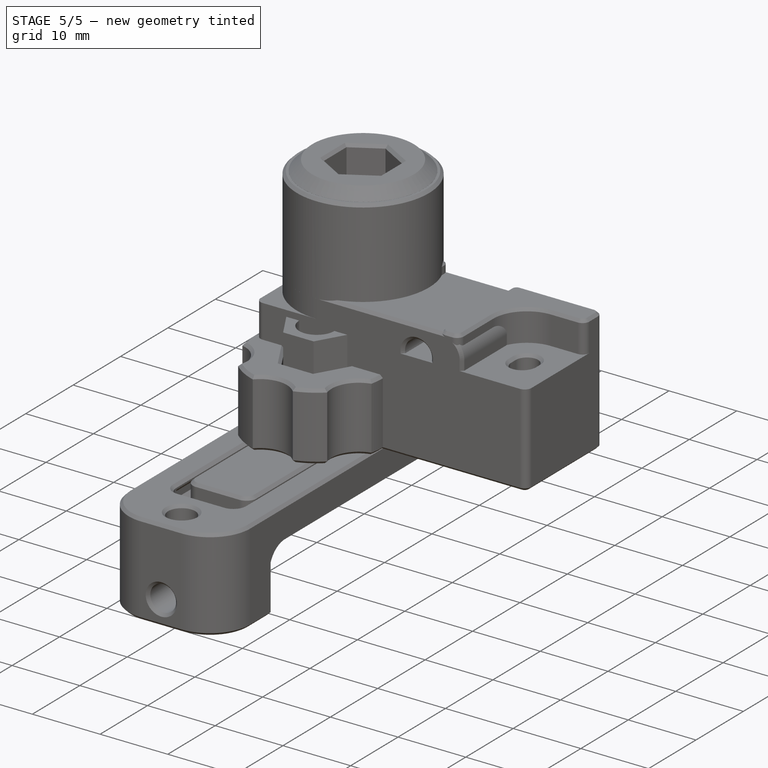
[diagram: stage 5 of 5 — iso view after this stage's code; geometry added in this stage tinted green]
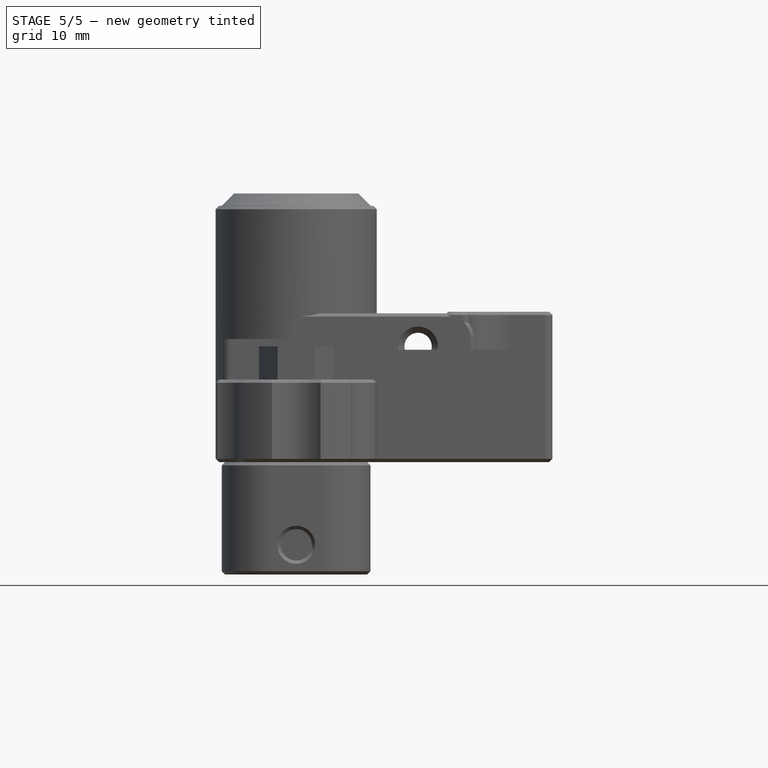
[diagram: stage 5 of 5 — front view after this stage's code; geometry added in this stage tinted green]
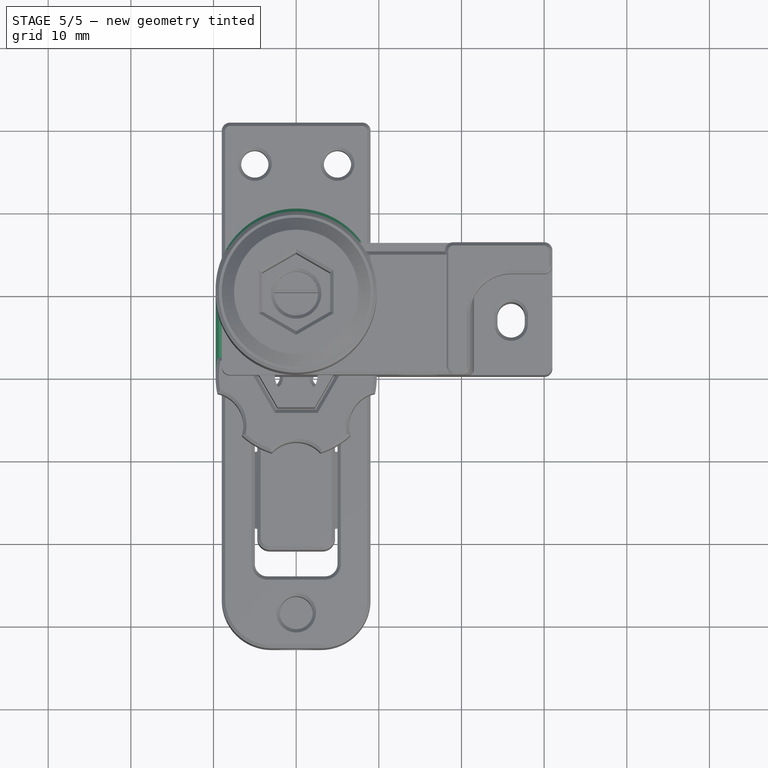
[diagram: stage 5 of 5 — top view after this stage's code; geometry added in this stage tinted green]
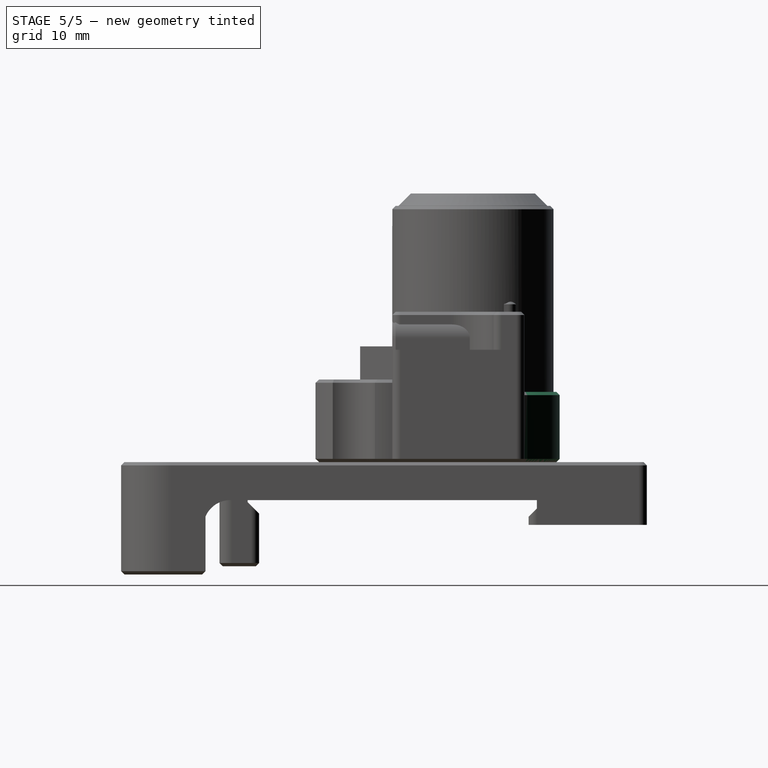
[diagram: stage 5 of 5 — right view after this stage's code; geometry added in this stage tinted green]
FEATURE [Part::Feature] Defeatured  label="din-base"
FEATURE [Sketcher::SketchObject] Sketch028
  FullyConstrained = true
  MapMode = 5
  Support = -> [XY_Plane006]
  sketch-geometry (5):
    g0: ArcOfCircle CenterX=0 CenterY=10.5 CenterZ=0 NormalX=0 NormalY=0 NormalZ=1 AngleXU=0 Radius=9.75 StartAngle=6.07533 EndAngle=9.42478
    g1: LineSegment StartX=-9.75 StartY=10.5 StartZ=0 EndX=-9.75 EndY=0 EndZ=0
    g2: LineSegment StartX=-9.75 StartY=0 StartZ=0 EndX=7.75 EndY=0 EndZ=0
    g3: Circle CenterX=0 CenterY=10.5 CenterZ=0 NormalX=0 NormalY=0 NormalZ=1 AngleXU=0 Radius=9.75
    g4: LineSegment StartX=7.75 StartY=0 StartZ=0 EndX=9.54013 EndY=8.48793 EndZ=0
  constraints (14):
    c: PointOnObject(g0,g-2)
    c: Horizontal(g0,g0)
    c: Tangent(g0,g1) = -1.5708
    c: Coincident(g1,g2)
    c: PointOnObject(g2,g-1)
    c: Horizontal(g2)
    c: Radius(g0) = 9.75
    c: DistanceY(g-1,g0) = 10.5
    c: Coincident(g3,g0)
    c: Radius(g3) = 9.75
    c: Coincident(g4,g2)
    c: Tangent(g4,g3)
    c: DistanceX(g-1,g2) = 7.75
    c: Coincident(g0,g4)
FEATURE [PartDesign::Pad] Pad009
  Direction = (1,1,1)
  Length = 8.5
  Length2 = 100
  Profile = -> Sketch028
  Type = 0
FEATURE [Sketcher::SketchObject] Sketch029
  FullyConstrained = true
  MapMode = 5
  Placement = pos=(0,0,0) rot=(1,0,0;3.14159rad)
  Support = -> [Pad009]
  sketch-geometry (1):
    g0: Circle CenterX=0 CenterY=-10.5 CenterZ=0 NormalX=0 NormalY=0 NormalZ=1 AngleXU=0 Radius=5.25
  constraints (3):
    c: PointOnObject(g0,g-2)
    c: Radius(g0) = 5.25
    c: DistanceY(g0,g-1) = 10.5
FEATURE [PartDesign::Pocket] Pocket014
  BaseFeature = -> Pad009
  Length = 1.5
  Length2 = 100
  Profile = -> Sketch029
  Type = 0
FEATURE [Sketcher::SketchObject] Sketch030
  FullyConstrained = true
  MapMode = 5
  Placement = pos=(0,0,8.5) rot=(0,0,1;0rad)
  Support = -> [Pocket014]
  sketch-geometry (1):
    g0: Circle CenterX=0 CenterY=10.5 CenterZ=0 NormalX=0 NormalY=0 NormalZ=1 AngleXU=0 Radius=2.65
  constraints (3):
    c: PointOnObject(g0,g-2)
    c: DistanceY(g-1,g0) = 10.5
    c: Radius(g0) = 2.65
FEATURE [PartDesign::Pocket] Pocket015
  BaseFeature = -> Pocket014
  Length = 5
  Length2 = 100
  Profile = -> Sketch030
  Type = 1
FEATURE [Sketcher::SketchObject] Sketch031
  FullyConstrained = true
  MapMode = 5
  Placement = pos=(0,0,8.5) rot=(0,0,1;0rad)
  Support = -> [Pocket015]
  sketch-geometry (7):
    g0: LineSegment StartX=0 StartY=15.25 StartZ=0 EndX=-4.11362 EndY=12.875 EndZ=0
    g1: LineSegment StartX=-4.11362 StartY=12.875 StartZ=0 EndX=-4.11362 EndY=8.125 EndZ=0
    g2: LineSegment StartX=-4.11362 StartY=8.125 StartZ=0 EndX=0 EndY=5.75 EndZ=0
    g3: LineSegment StartX=0 StartY=5.75 StartZ=0 EndX=4.11362 EndY=8.125 EndZ=0
    g4: LineSegment StartX=4.11362 StartY=8.125 StartZ=0 EndX=4.11362 EndY=12.875 EndZ=0
    g5: LineSegment StartX=4.11362 StartY=12.875 StartZ=0 EndX=0 EndY=15.25 EndZ=0
    g6: Circle CenterX=0 CenterY=10.5 CenterZ=0 NormalX=0 NormalY=0 NormalZ=1 AngleXU=0 Radius=4.75
  constraints (17):
    c: Coincident(g0,g1)
    c: Coincident(g1,g2)
    c: Coincident(g2,g3)
    c: Coincident(g3,g4)
    c: Coincident(g4,g5)
    c: Coincident(g5,g0)
    c: Equal(g0, g1-g5) x5
    c: PointOnObject(g0,g6)
    c: PointOnObject(g1,g6)
    c: PointOnObject(g2,g6)
    c: PointOnObject(g3,g6)
    c: PointOnObject(g4,g6)
    c: PointOnObject(g5,g6)
    c: PointOnObject(g6,g-2)
    c: PointOnObject(g5,g-2)
    c: DistanceY(g-1,g6) = 10.5
    c: Radius(g6) = 4.75
FEATURE [PartDesign::Pocket] Pocket016
  BaseFeature = -> Pocket015
  Length = 4
  Length2 = 100
  Profile = -> Sketch031
  Type = 0
FEATURE [PartDesign::Fillet] Fillet005009
  Base = -> Pocket016 [Edge11]
  BaseFeature = -> Pocket016
  Radius = 2.5
  SupportTransform = false
FEATURE [PartDesign::Chamfer] Chamfer007003
  Angle = 45
  Base = -> Fillet005009 [Face4,Edge1,Edge2,Edge4,Edge19,Edge20,Edge9,Edge6,Edge38]
  BaseFeature = -> Fillet005009
  ChamferType = 0
  FlipDirection = false
  Size = 0.4
  Size2 = 1
  SupportTransform = false
FEATURE [Sketcher::SketchObject] Sketch035
  FullyConstrained = true
  MapMode = 5
  Placement = pos=(0,0,0) rot=(1,0,0;1.5708rad)
  Support = -> [Pocket019]
  sketch-geometry (2):
    g0: Circle CenterX=14.75 CenterY=14 CenterZ=0 NormalX=0 NormalY=0 NormalZ=1 AngleXU=0 Radius=2
    g1: Circle CenterX=14.75 CenterY=4 CenterZ=0 NormalX=0 NormalY=0 NormalZ=1 AngleXU=0 Radius=2
  constraints (6):
    c: Vertical(g1,g0)
    c: DistanceY(g1,g0) = 10
    c: DistanceY(g-1,g1) = 4
    c: DistanceX(g-1,g1) = 14.75
    c: Equal(g1,g0)
    c: Radius(g0) = 2
FEATURE [PartDesign::Pocket] Pocket020
  BaseFeature = -> Pocket019
  Length = 7
  Length2 = 100
  Profile = -> Sketch035
  Type = 0
FEATURE [PartDesign::Fillet] Fillet
  Base = -> Pocket020 [Edge9,Edge22]
  BaseFeature = -> Pocket020
  Radius = 3
  SupportTransform = false
FEATURE [PartDesign::Chamfer] Chamfer007004
  Angle = 45
  Base = -> Fillet [Edge27,Edge29]
  BaseFeature = -> Fillet
  ChamferType = 0
  FlipDirection = false
  Size = 0.34
  Size2 = 1
  SupportTransform = false
FEATURE [PartDesign::Chamfer] Chamfer007005
  Angle = 45
  Base = -> Chamfer007004 [Edge31,Edge32,Edge25,Edge19,Edge14,Edge17,Edge22,Edge24,Edge21,Edge10,Edge8,Edge6,Edge7,Edge9,Edge12,Edge3,Edge23,Edge61,Edge33]
  BaseFeature = -> Chamfer007004
  ChamferType = 0
  FlipDirection = false
  Size = 0.4
  Size2 = 1
  SupportTransform = false
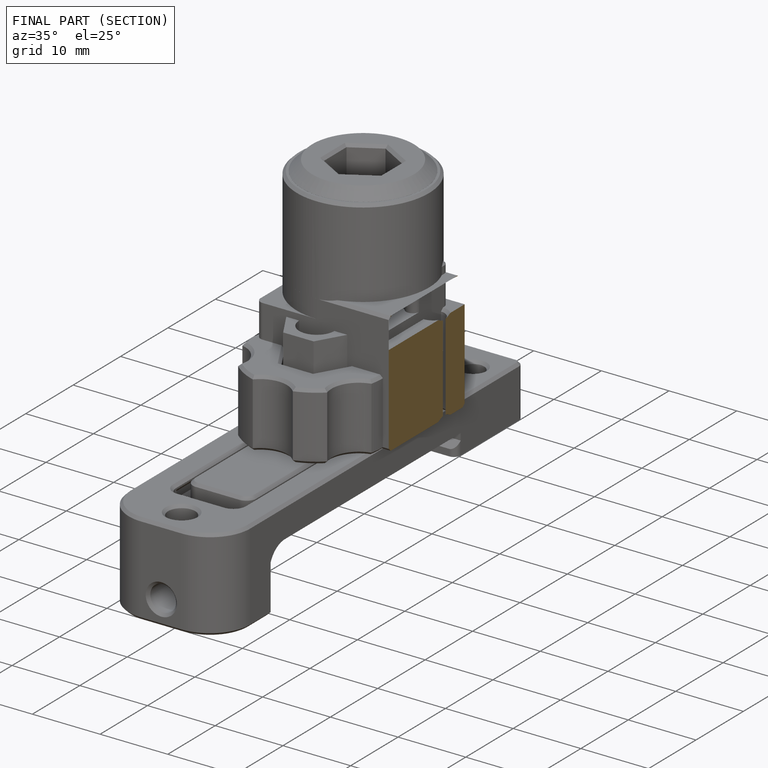
[diagram: finished part — half-section view (interior)]
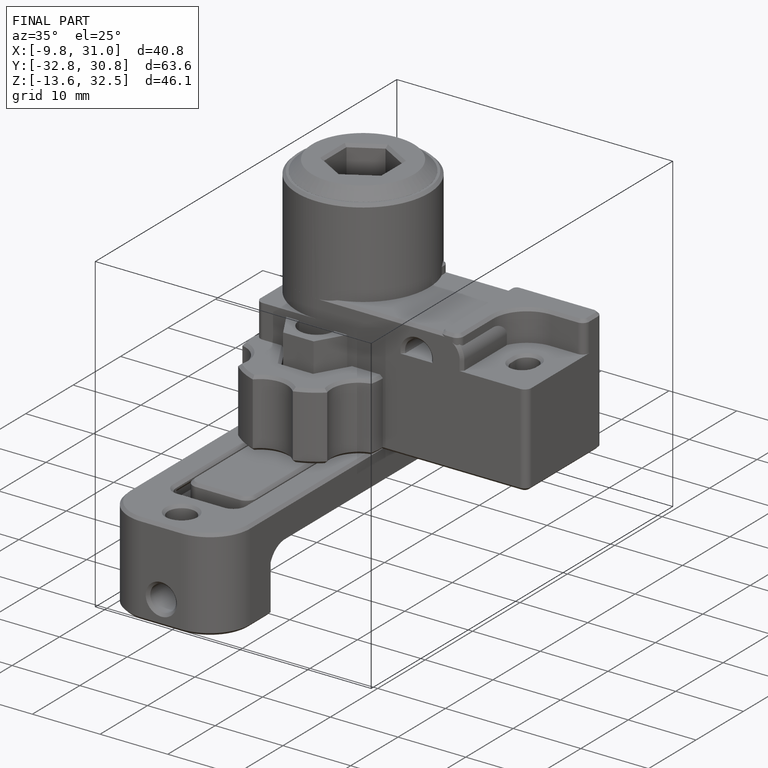
[diagram: finished part — iso view with bounding-box wireframe]
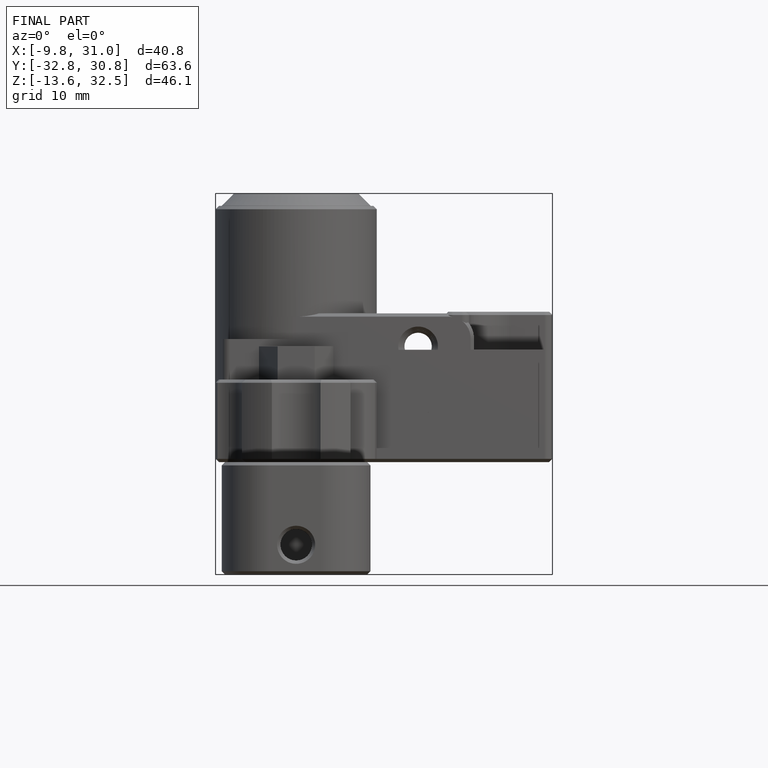
[diagram: finished part — front view with bounding-box wireframe]
